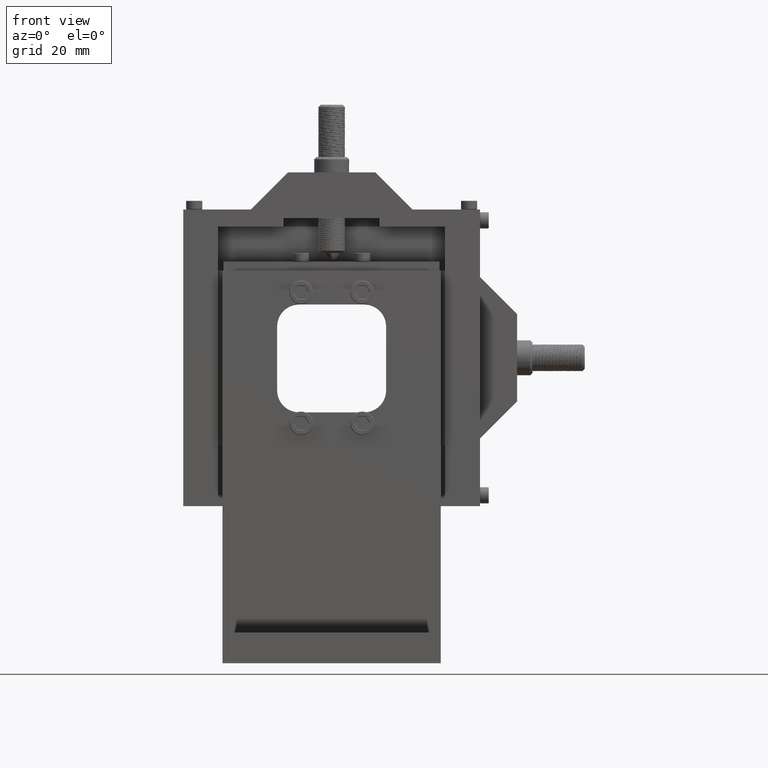
[diagram: clean part render]
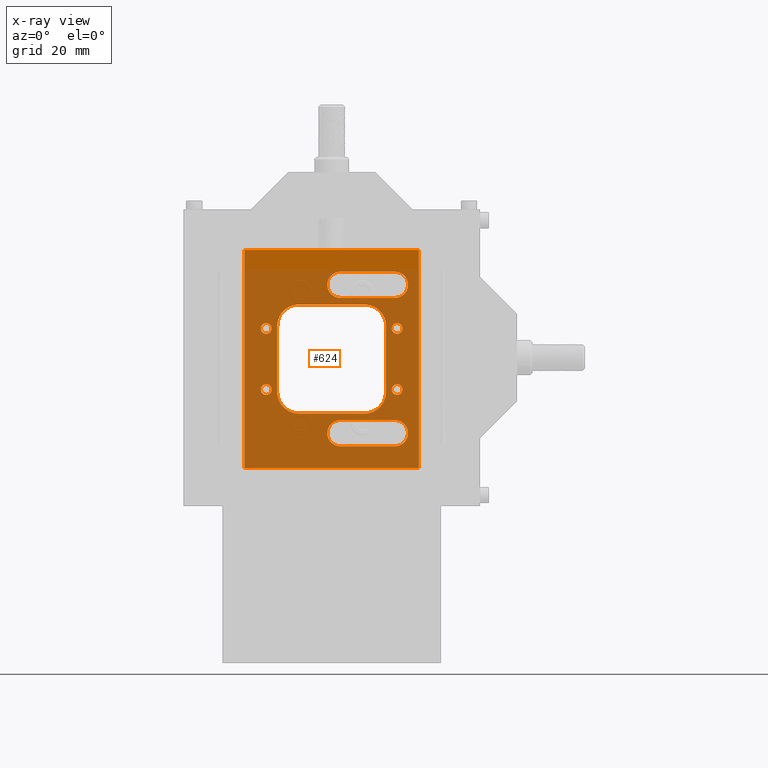
[diagram: x-ray — body ghosted, one internal face saturated and labeled with its STEP entity id]
A machine part, front view, then the same camera in x-ray: the body is ghosted and one INTERNAL B-rep face — a face not visible from any outside direction — is saturated and labeled: STEP entity #624.
In plain terms, the highlighted planar face has unit normal (0, -1, 0).
Its self-contained STEP definition (entity closure, byte-faithful):
#105=FACE_BOUND('',#3712,.T.);
#106=FACE_BOUND('',#3713,.T.);
#107=FACE_BOUND('',#3714,.T.);
#108=FACE_BOUND('',#3715,.T.);
#109=FACE_BOUND('',#3716,.T.);
#110=FACE_BOUND('',#3717,.T.);
#111=FACE_BOUND('',#3718,.T.);
#624=ADVANCED_FACE('',(#2149,#105,#106,#107,#108,#109,#110,#111),#23246,
 .T.);
#2149=FACE_OUTER_BOUND('',#3711,.T.);
#3711=EDGE_LOOP('',(#6861,#6862,#6863,#6864));
#3712=EDGE_LOOP('',(#6865,#6866));
#3713=EDGE_LOOP('',(#6867,#6868));
#3714=EDGE_LOOP('',(#6869,#6870));
#3715=EDGE_LOOP('',(#6871,#6872));
#3716=EDGE_LOOP('',(#6873,#6874,#6875,#6876,#6877,#6878,#6879,#6880));
#3717=EDGE_LOOP('',(#6881,#6882,#6883,#6884));
#3718=EDGE_LOOP('',(#6885,#6886,#6887,#6888));
#6861=ORIENTED_EDGE('',*,*,#13509,.T.);
#6862=ORIENTED_EDGE('',*,*,#13508,.F.);
#6863=ORIENTED_EDGE('',*,*,#13510,.T.);
#6864=ORIENTED_EDGE('',*,*,#13511,.T.);
#6865=ORIENTED_EDGE('',*,*,#13868,.T.);
#6866=ORIENTED_EDGE('',*,*,#13924,.T.);
#6867=ORIENTED_EDGE('',*,*,#13867,.T.);
#6868=ORIENTED_EDGE('',*,*,#13921,.T.);
#6869=ORIENTED_EDGE('',*,*,#13872,.T.);
#6870=ORIENTED_EDGE('',*,*,#13934,.T.);
#6871=ORIENTED_EDGE('',*,*,#13865,.T.);
#6872=ORIENTED_EDGE('',*,*,#13918,.T.);
#6873=ORIENTED_EDGE('',*,*,#13515,.T.);
#6874=ORIENTED_EDGE('',*,*,#13621,.T.);
#6875=ORIENTED_EDGE('',*,*,#13512,.T.);
#6876=ORIENTED_EDGE('',*,*,#13625,.T.);
#6877=ORIENTED_EDGE('',*,*,#13513,.T.);
#6878=ORIENTED_EDGE('',*,*,#13628,.T.);
#6879=ORIENTED_EDGE('',*,*,#13514,.T.);
#6880=ORIENTED_EDGE('',*,*,#13617,.T.);
#6881=ORIENTED_EDGE('',*,*,#13609,.T.);
#6882=ORIENTED_EDGE('',*,*,#13516,.T.);
#6883=ORIENTED_EDGE('',*,*,#13612,.T.);
#6884=ORIENTED_EDGE('',*,*,#13517,.T.);
#6885=ORIENTED_EDGE('',*,*,#13589,.T.);
#6886=ORIENTED_EDGE('',*,*,#13518,.T.);
#6887=ORIENTED_EDGE('',*,*,#13592,.T.);
#6888=ORIENTED_EDGE('',*,*,#13519,.T.);
#13508=EDGE_CURVE('',#20739,#20736,#17947,.T.);
#13509=EDGE_CURVE('',#20740,#20736,#17948,.T.);
#13510=EDGE_CURVE('',#20739,#20741,#17949,.T.);
#13511=EDGE_CURVE('',#20741,#20740,#17950,.T.);
#13512=EDGE_CURVE('',#20747,#20748,#17951,.T.);
#13513=EDGE_CURVE('',#20749,#20750,#17952,.T.);
#13514=EDGE_CURVE('',#20751,#20752,#17953,.T.);
#13515=EDGE_CURVE('',#20753,#20746,#17954,.T.);
#13516=EDGE_CURVE('',#20754,#20755,#17955,.T.);
#13517=EDGE_CURVE('',#20756,#20757,#17956,.T.);
#13518=EDGE_CURVE('',#20758,#20759,#17957,.T.);
#13519=EDGE_CURVE('',#20760,#20761,#17958,.T.);
#13589=EDGE_CURVE('',#20761,#20758,#16628,.T.);
#13592=EDGE_CURVE('',#20759,#20760,#16630,.T.);
#13609=EDGE_CURVE('',#20757,#20754,#16639,.T.);
#13612=EDGE_CURVE('',#20755,#20756,#16641,.T.);
#13617=EDGE_CURVE('',#20752,#20753,#16643,.T.);
#13621=EDGE_CURVE('',#20746,#20747,#16645,.T.);
#13625=EDGE_CURVE('',#20748,#20749,#16647,.T.);
#13628=EDGE_CURVE('',#20750,#20751,#16649,.T.);
#13865=EDGE_CURVE('',#20745,#20953,#16713,.T.);
#13867=EDGE_CURVE('',#20743,#20955,#16714,.T.);
#13868=EDGE_CURVE('',#20742,#20957,#16715,.T.);
#13872=EDGE_CURVE('',#20744,#20963,#16719,.T.);
#13918=EDGE_CURVE('',#20953,#20745,#16745,.T.);
#13921=EDGE_CURVE('',#20955,#20743,#16747,.T.);
#13924=EDGE_CURVE('',#20957,#20742,#16749,.T.);
#13934=EDGE_CURVE('',#20963,#20744,#16755,.T.);
#16628=(
BOUNDED_CURVE()
B_SPLINE_CURVE(2,(#31638,#31639,#31640,#31641,#31642),.UNSPECIFIED.,.F.,
 .F.)
B_SPLINE_CURVE_WITH_KNOTS((3,2,3),(-9.42477796076936,-4.71238898038468,
0.),.UNSPECIFIED.)
CURVE()
GEOMETRIC_REPRESENTATION_ITEM()
RATIONAL_B_SPLINE_CURVE((1.,0.707106781186548,1.,0.707106781186548,1.))
REPRESENTATION_ITEM('')
);
#16630=(
BOUNDED_CURVE()
B_SPLINE_CURVE(2,(#31650,#31651,#31652,#31653,#31654),.UNSPECIFIED.,.F.,
 .F.)
B_SPLINE_CURVE_WITH_KNOTS((3,2,3),(-9.42477796076938,-4.71238898038469,
0.),.UNSPECIFIED.)
CURVE()
GEOMETRIC_REPRESENTATION_ITEM()
RATIONAL_B_SPLINE_CURVE((1.,0.707106781186548,1.,0.707106781186548,1.))
REPRESENTATION_ITEM('')
);
#16639=(
BOUNDED_CURVE()
B_SPLINE_CURVE(2,(#31701,#31702,#31703,#31704,#31705),.UNSPECIFIED.,.F.,
 .F.)
B_SPLINE_CURVE_WITH_KNOTS((3,2,3),(-9.42477796076938,-4.71238898038469,
0.),.UNSPECIFIED.)
CURVE()
GEOMETRIC_REPRESENTATION_ITEM()
RATIONAL_B_SPLINE_CURVE((1.,0.707106781186548,1.,0.707106781186548,1.))
REPRESENTATION_ITEM('')
);
#16641=(
BOUNDED_CURVE()
B_SPLINE_CURVE(2,(#31713,#31714,#31715,#31716,#31717),.UNSPECIFIED.,.F.,
 .F.)
B_SPLINE_CURVE_WITH_KNOTS((3,2,3),(-9.42477796076938,-4.71238898038469,
0.),.UNSPECIFIED.)
CURVE()
GEOMETRIC_REPRESENTATION_ITEM()
RATIONAL_B_SPLINE_CURVE((1.,0.707106781186548,1.,0.707106781186548,1.))
REPRESENTATION_ITEM('')
);
#16643=(
BOUNDED_CURVE()
B_SPLINE_CURVE(2,(#31727,#31728,#31729),.UNSPECIFIED.,.F.,.F.)
B_SPLINE_CURVE_WITH_KNOTS((3,3),(-7.85398163397448,0.),.UNSPECIFIED.)
CURVE()
GEOMETRIC_REPRESENTATION_ITEM()
RATIONAL_B_SPLINE_CURVE((1.,0.707106781186548,1.))
REPRESENTATION_ITEM('')
);
#16645=(
BOUNDED_CURVE()
B_SPLINE_CURVE(2,(#31737,#31738,#31739),.UNSPECIFIED.,.F.,.F.)
B_SPLINE_CURVE_WITH_KNOTS((3,3),(-7.85398163397448,0.),.UNSPECIFIED.)
CURVE()
GEOMETRIC_REPRESENTATION_ITEM()
RATIONAL_B_SPLINE_CURVE((1.,0.707106781186548,1.))
REPRESENTATION_ITEM('')
);
#16647=(
BOUNDED_CURVE()
B_SPLINE_CURVE(2,(#31747,#31748,#31749),.UNSPECIFIED.,.F.,.F.)
B_SPLINE_CURVE_WITH_KNOTS((3,3),(-7.85398163397448,0.),.UNSPECIFIED.)
CURVE()
GEOMETRIC_REPRESENTATION_ITEM()
RATIONAL_B_SPLINE_CURVE((1.,0.707106781186548,1.))
REPRESENTATION_ITEM('')
);
#16649=(
BOUNDED_CURVE()
B_SPLINE_CURVE(2,(#31755,#31756,#31757),.UNSPECIFIED.,.F.,.F.)
B_SPLINE_CURVE_WITH_KNOTS((3,3),(-7.85398163397448,0.),.UNSPECIFIED.)
CURVE()
GEOMETRIC_REPRESENTATION_ITEM()
RATIONAL_B_SPLINE_CURVE((1.,0.707106781186548,1.))
REPRESENTATION_ITEM('')
);
#16713=(
BOUNDED_CURVE()
B_SPLINE_CURVE(2,(#32443,#32444,#32445,#32446,#32447),.UNSPECIFIED.,.F.,
 .F.)
B_SPLINE_CURVE_WITH_KNOTS((3,2,3),(-3.86258816758866,-1.93129408379433,
1.67421632113474E-13),.UNSPECIFIED.)
CURVE()
GEOMETRIC_REPRESENTATION_ITEM()
RATIONAL_B_SPLINE_CURVE((1.,0.707106781186548,1.,0.707106781186504,1.))
REPRESENTATION_ITEM('')
);
#16714=(
BOUNDED_CURVE()
B_SPLINE_CURVE(2,(#32467,#32468,#32469,#32470,#32471),.UNSPECIFIED.,.F.,
 .F.)
B_SPLINE_CURVE_WITH_KNOTS((3,2,3),(-3.86258816758863,-1.93129408379432,
1.62980740014973E-13),.UNSPECIFIED.)
CURVE()
GEOMETRIC_REPRESENTATION_ITEM()
RATIONAL_B_SPLINE_CURVE((1.,0.707106781186548,1.,0.707106781186505,1.))
REPRESENTATION_ITEM('')
);
#16715=(
BOUNDED_CURVE()
B_SPLINE_CURVE(2,(#32472,#32473,#32474,#32475,#32476),.UNSPECIFIED.,.F.,
 .F.)
B_SPLINE_CURVE_WITH_KNOTS((3,2,3),(-3.86258816758864,-1.93129408379432,
1.62980740014973E-13),.UNSPECIFIED.)
CURVE()
GEOMETRIC_REPRESENTATION_ITEM()
RATIONAL_B_SPLINE_CURVE((1.,0.707106781186548,1.,0.707106781186505,1.))
REPRESENTATION_ITEM('')
);
#16719=(
BOUNDED_CURVE()
B_SPLINE_CURVE(2,(#32492,#32493,#32494,#32495,#32496),.UNSPECIFIED.,.F.,
 .F.)
B_SPLINE_CURVE_WITH_KNOTS((3,2,3),(-3.86258816758864,-1.93129408379432,
1.63424829224823E-13),.UNSPECIFIED.)
CURVE()
GEOMETRIC_REPRESENTATION_ITEM()
RATIONAL_B_SPLINE_CURVE((1.,0.707106781186548,1.,0.707106781186505,1.))
REPRESENTATION_ITEM('')
);
#16745=(
BOUNDED_CURVE()
B_SPLINE_CURVE(2,(#32796,#32797,#32798,#32799,#32800),.UNSPECIFIED.,.F.,
 .F.)
B_SPLINE_CURVE_WITH_KNOTS((3,2,3),(1.67421632113474E-13,1.93129408379433,
3.86258816758866),.UNSPECIFIED.)
CURVE()
GEOMETRIC_REPRESENTATION_ITEM()
RATIONAL_B_SPLINE_CURVE((1.,0.707106781186591,1.,0.707106781186548,1.))
REPRESENTATION_ITEM('')
);
#16747=(
BOUNDED_CURVE()
B_SPLINE_CURVE(2,(#32808,#32809,#32810,#32811,#32812),.UNSPECIFIED.,.F.,
 .F.)
B_SPLINE_CURVE_WITH_KNOTS((3,2,3),(1.62980740014973E-13,1.93129408379432,
3.86258816758863),.UNSPECIFIED.)
CURVE()
GEOMETRIC_REPRESENTATION_ITEM()
RATIONAL_B_SPLINE_CURVE((1.,0.70710678118659,1.,0.707106781186548,1.))
REPRESENTATION_ITEM('')
);
#16749=(
BOUNDED_CURVE()
B_SPLINE_CURVE(2,(#32820,#32821,#32822,#32823,#32824),.UNSPECIFIED.,.F.,
 .F.)
B_SPLINE_CURVE_WITH_KNOTS((3,2,3),(1.62980740014973E-13,1.93129408379432,
3.86258816758864),.UNSPECIFIED.)
CURVE()
GEOMETRIC_REPRESENTATION_ITEM()
RATIONAL_B_SPLINE_CURVE((1.,0.70710678118659,1.,0.707106781186548,1.))
REPRESENTATION_ITEM('')
);
#16755=(
BOUNDED_CURVE()
B_SPLINE_CURVE(2,(#32856,#32857,#32858,#32859,#32860),.UNSPECIFIED.,.F.,
 .F.)
B_SPLINE_CURVE_WITH_KNOTS((3,2,3),(1.63424829224823E-13,1.93129408379432,
3.86258816758864),.UNSPECIFIED.)
CURVE()
GEOMETRIC_REPRESENTATION_ITEM()
RATIONAL_B_SPLINE_CURVE((1.,0.70710678118659,1.,0.707106781186548,1.))
REPRESENTATION_ITEM('')
);
#17947=B_SPLINE_CURVE_WITH_KNOTS('',1,(#31433,#31434),.UNSPECIFIED.,.F.,
 .F.,(2,2),(0.,40.),.UNSPECIFIED.);
#17948=B_SPLINE_CURVE_WITH_KNOTS('',1,(#31435,#31436),.UNSPECIFIED.,.F.,
 .F.,(2,2),(0.,50.),.UNSPECIFIED.);
#17949=B_SPLINE_CURVE_WITH_KNOTS('',1,(#31437,#31438),.UNSPECIFIED.,.F.,
 .F.,(2,2),(0.,50.),.UNSPECIFIED.);
#17950=B_SPLINE_CURVE_WITH_KNOTS('',1,(#31439,#31440),.UNSPECIFIED.,.F.,
 .F.,(2,2),(0.,40.),.UNSPECIFIED.);
#17951=B_SPLINE_CURVE_WITH_KNOTS('',1,(#31441,#31442),.UNSPECIFIED.,.F.,
 .F.,(2,2),(0.,15.),.UNSPECIFIED.);
#17952=B_SPLINE_CURVE_WITH_KNOTS('',1,(#31443,#31444),.UNSPECIFIED.,.F.,
 .F.,(2,2),(0.,14.9999999999999),.UNSPECIFIED.);
#17953=B_SPLINE_CURVE_WITH_KNOTS('',1,(#31445,#31446),.UNSPECIFIED.,.F.,
 .F.,(2,2),(0.,15.),.UNSPECIFIED.);
#17954=B_SPLINE_CURVE_WITH_KNOTS('',1,(#31447,#31448),.UNSPECIFIED.,.F.,
 .F.,(2,2),(0.,14.9999999999998),.UNSPECIFIED.);
#17955=B_SPLINE_CURVE_WITH_KNOTS('',1,(#31449,#31450),.UNSPECIFIED.,.F.,
 .F.,(2,2),(0.,12.5),.UNSPECIFIED.);
#17956=B_SPLINE_CURVE_WITH_KNOTS('',1,(#31451,#31452),.UNSPECIFIED.,.F.,
 .F.,(2,2),(0.,12.5),.UNSPECIFIED.);
#17957=B_SPLINE_CURVE_WITH_KNOTS('',1,(#31453,#31454),.UNSPECIFIED.,.F.,
 .F.,(2,2),(0.,12.5),.UNSPECIFIED.);
#17958=B_SPLINE_CURVE_WITH_KNOTS('',1,(#31455,#31456),.UNSPECIFIED.,.F.,
 .F.,(2,2),(0.,12.5),.UNSPECIFIED.);
#20736=VERTEX_POINT('',#30893);
#20739=VERTEX_POINT('',#30896);
#20740=VERTEX_POINT('',#30897);
#20741=VERTEX_POINT('',#30898);
#20742=VERTEX_POINT('',#30899);
#20743=VERTEX_POINT('',#30900);
#20744=VERTEX_POINT('',#30901);
#20745=VERTEX_POINT('',#30902);
#20746=VERTEX_POINT('',#30903);
#20747=VERTEX_POINT('',#30904);
#20748=VERTEX_POINT('',#30905);
#20749=VERTEX_POINT('',#30906);
#20750=VERTEX_POINT('',#30907);
#20751=VERTEX_POINT('',#30908);
#20752=VERTEX_POINT('',#30909);
#20753=VERTEX_POINT('',#30910);
#20754=VERTEX_POINT('',#30911);
#20755=VERTEX_POINT('',#30912);
#20756=VERTEX_POINT('',#30913);
#20757=VERTEX_POINT('',#30914);
#20758=VERTEX_POINT('',#30915);
#20759=VERTEX_POINT('',#30916);
#20760=VERTEX_POINT('',#30917);
#20761=VERTEX_POINT('',#30918);
#20953=VERTEX_POINT('',#31110);
#20955=VERTEX_POINT('',#31112);
#20957=VERTEX_POINT('',#31114);
#20963=VERTEX_POINT('',#31120);
#23246=PLANE('',#24146);
#24146=AXIS2_PLACEMENT_3D('',#30461,#25491,$);
#25491=DIRECTION('',(0.,-1.,0.));
#30461=CARTESIAN_POINT('',(-36.1199975952793,18.999993835614,39.5867628392237));
#30893=CARTESIAN_POINT('',(8.00000240472073,18.999993835614,94.7067628392236));
#30896=CARTESIAN_POINT('',(-31.9999975952793,18.999993835614,94.7067628392236));
#30897=CARTESIAN_POINT('',(8.00000240472073,18.999993835614,44.7067628392237));
#30898=CARTESIAN_POINT('',(-31.9999975952793,18.999993835614,44.7067628392237));
#30899=CARTESIAN_POINT('',(3.00000240472073,18.999993835614,75.4772628392241));
#30900=CARTESIAN_POINT('',(3.00000240472073,18.999993835614,61.4772628392238));
#30901=CARTESIAN_POINT('',(-26.9999975952793,18.999993835614,75.4772628392242));
#30902=CARTESIAN_POINT('',(-26.9999975952793,18.999993835614,61.4772628392239));
#30903=CARTESIAN_POINT('',(0.500002404720732,18.999993835614,62.206762839224));
#30904=CARTESIAN_POINT('',(-4.49999759527927,18.999993835614,57.206762839224));
#30905=CARTESIAN_POINT('',(-19.4999975952793,18.999993835614,57.2067628392239));
#30906=CARTESIAN_POINT('',(-24.4999975952793,18.999993835614,62.2067628392239));
#30907=CARTESIAN_POINT('',(-24.4999975952793,18.999993835614,77.2067628392238));
#30908=CARTESIAN_POINT('',(-19.4999975952793,18.999993835614,82.2067628392238));
#30909=CARTESIAN_POINT('',(-4.49999759527927,18.999993835614,82.2067628392238));
#30910=CARTESIAN_POINT('',(0.500002404720732,18.999993835614,77.2067628392238));
#30911=CARTESIAN_POINT('',(2.50000240472073,18.999993835614,83.7067628392239));
#30912=CARTESIAN_POINT('',(-9.99999759527927,18.999993835614,83.7067628392238));
#30913=CARTESIAN_POINT('',(-9.99999759527927,18.999993835614,89.7067628392238));
#30914=CARTESIAN_POINT('',(2.50000240472073,18.999993835614,89.7067628392239));
#30915=CARTESIAN_POINT('',(2.50000240472073,18.999993835614,49.7067628392239));
#30916=CARTESIAN_POINT('',(-9.99999759527927,18.999993835614,49.7067628392238));
#30917=CARTESIAN_POINT('',(-9.99999759527927,18.999993835614,55.7067628392238));
#30918=CARTESIAN_POINT('',(2.50000240472073,18.999993835614,55.7067628392239));
#31110=CARTESIAN_POINT('',(-26.9999975952791,18.999993835614,63.9362628392239));
#31112=CARTESIAN_POINT('',(3.00000240472089,18.999993835614,63.9362628392238));
#31114=CARTESIAN_POINT('',(3.00000240472089,18.999993835614,77.9362628392241));
#31120=CARTESIAN_POINT('',(-26.9999975952791,18.999993835614,77.9362628392242));
#31433=CARTESIAN_POINT('',(-31.9999975952793,18.999993835614,94.7067628392236));
#31434=CARTESIAN_POINT('',(8.00000240472073,18.999993835614,94.7067628392236));
#31435=CARTESIAN_POINT('',(8.00000240472073,18.999993835614,44.7067628392237));
#31436=CARTESIAN_POINT('',(8.00000240472073,18.999993835614,94.7067628392236));
#31437=CARTESIAN_POINT('',(-31.9999975952793,18.999993835614,94.7067628392236));
#31438=CARTESIAN_POINT('',(-31.9999975952793,18.999993835614,44.7067628392237));
#31439=CARTESIAN_POINT('',(-31.9999975952793,18.999993835614,44.7067628392237));
#31440=CARTESIAN_POINT('',(8.00000240472073,18.999993835614,44.7067628392237));
#31441=CARTESIAN_POINT('',(-4.49999759527927,18.999993835614,57.206762839224));
#31442=CARTESIAN_POINT('',(-19.4999975952793,18.999993835614,57.2067628392239));
#31443=CARTESIAN_POINT('',(-24.4999975952793,18.999993835614,62.2067628392239));
#31444=CARTESIAN_POINT('',(-24.4999975952793,18.999993835614,77.2067628392238));
#31445=CARTESIAN_POINT('',(-19.4999975952793,18.999993835614,82.2067628392238));
#31446=CARTESIAN_POINT('',(-4.49999759527927,18.999993835614,82.2067628392238));
#31447=CARTESIAN_POINT('',(0.500002404720732,18.999993835614,77.2067628392238));
#31448=CARTESIAN_POINT('',(0.500002404720732,18.999993835614,62.206762839224));
#31449=CARTESIAN_POINT('',(2.50000240472073,18.999993835614,83.7067628392239));
#31450=CARTESIAN_POINT('',(-9.99999759527927,18.999993835614,83.7067628392238));
#31451=CARTESIAN_POINT('',(-9.99999759527927,18.999993835614,89.7067628392238));
#31452=CARTESIAN_POINT('',(2.50000240472073,18.999993835614,89.7067628392239));
#31453=CARTESIAN_POINT('',(2.50000240472073,18.999993835614,49.7067628392239));
#31454=CARTESIAN_POINT('',(-9.99999759527927,18.999993835614,49.7067628392238));
#31455=CARTESIAN_POINT('',(-9.99999759527927,18.999993835614,55.7067628392238));
#31456=CARTESIAN_POINT('',(2.50000240472073,18.999993835614,55.7067628392239));
#31638=CARTESIAN_POINT('',(2.50000240472073,18.999993835614,55.7067628392238));
#31639=CARTESIAN_POINT('',(5.50000240472072,18.999993835614,55.7067628392238));
#31640=CARTESIAN_POINT('',(5.50000240472072,18.999993835614,52.7067628392239));
#31641=CARTESIAN_POINT('',(5.50000240472072,18.999993835614,49.7067628392239));
#31642=CARTESIAN_POINT('',(2.50000240472073,18.999993835614,49.7067628392239));
#31650=CARTESIAN_POINT('',(-9.99999759527927,18.999993835614,49.7067628392238));
#31651=CARTESIAN_POINT('',(-12.9999975952793,18.999993835614,49.7067628392238));
#31652=CARTESIAN_POINT('',(-12.9999975952793,18.999993835614,52.7067628392238));
#31653=CARTESIAN_POINT('',(-12.9999975952793,18.999993835614,55.7067628392237));
#31654=CARTESIAN_POINT('',(-9.99999759527927,18.999993835614,55.7067628392237));
#31701=CARTESIAN_POINT('',(2.50000240472073,18.999993835614,89.7067628392239));
#31702=CARTESIAN_POINT('',(5.50000240472073,18.999993835614,89.7067628392239));
#31703=CARTESIAN_POINT('',(5.50000240472073,18.999993835614,86.7067628392239));
#31704=CARTESIAN_POINT('',(5.50000240472073,18.999993835614,83.7067628392239));
#31705=CARTESIAN_POINT('',(2.50000240472073,18.999993835614,83.7067628392239));
#31713=CARTESIAN_POINT('',(-9.99999759527927,18.999993835614,83.7067628392238));
#31714=CARTESIAN_POINT('',(-12.9999975952793,18.999993835614,83.7067628392238));
#31715=CARTESIAN_POINT('',(-12.9999975952793,18.999993835614,86.7067628392238));
#31716=CARTESIAN_POINT('',(-12.9999975952793,18.999993835614,89.7067628392238));
#31717=CARTESIAN_POINT('',(-9.99999759527927,18.999993835614,89.7067628392238));
#31727=CARTESIAN_POINT('',(-4.49999759527927,18.999993835614,82.2067628392238));
#31728=CARTESIAN_POINT('',(0.500002404720732,18.999993835614,82.2067628392238));
#31729=CARTESIAN_POINT('',(0.500002404720732,18.999993835614,77.2067628392238));
#31737=CARTESIAN_POINT('',(0.500002404720732,18.999993835614,62.206762839224));
#31738=CARTESIAN_POINT('',(0.500002404720732,18.999993835614,57.206762839224));
#31739=CARTESIAN_POINT('',(-4.49999759527927,18.999993835614,57.206762839224));
#31747=CARTESIAN_POINT('',(-19.4999975952793,18.999993835614,57.2067628392239));
#31748=CARTESIAN_POINT('',(-24.4999975952793,18.999993835614,57.2067628392239));
#31749=CARTESIAN_POINT('',(-24.4999975952793,18.999993835614,62.2067628392239));
#31755=CARTESIAN_POINT('',(-24.4999975952793,18.999993835614,77.2067628392238));
#31756=CARTESIAN_POINT('',(-24.4999975952793,18.999993835614,82.2067628392238));
#31757=CARTESIAN_POINT('',(-19.4999975952793,18.999993835614,82.2067628392238));
#32443=CARTESIAN_POINT('',(-26.9999975952793,18.999993835614,61.4772628392239));
#32444=CARTESIAN_POINT('',(-28.2294975952793,18.999993835614,61.4772628392239));
#32445=CARTESIAN_POINT('',(-28.2294975952793,18.999993835614,62.7067628392239));
#32446=CARTESIAN_POINT('',(-28.2294975952793,18.999993835614,63.936262839224));
#32447=CARTESIAN_POINT('',(-26.9999975952791,18.999993835614,63.9362628392239));
#32467=CARTESIAN_POINT('',(3.00000240472073,18.999993835614,61.4772628392238));
#32468=CARTESIAN_POINT('',(1.77050240472074,18.999993835614,61.4772628392238));
#32469=CARTESIAN_POINT('',(1.77050240472074,18.999993835614,62.7067628392238));
#32470=CARTESIAN_POINT('',(1.77050240472074,18.999993835614,63.9362628392239));
#32471=CARTESIAN_POINT('',(3.00000240472089,18.999993835614,63.9362628392238));
#32472=CARTESIAN_POINT('',(3.00000240472073,18.999993835614,75.4772628392241));
#32473=CARTESIAN_POINT('',(1.77050240472073,18.999993835614,75.4772628392241));
#32474=CARTESIAN_POINT('',(1.77050240472073,18.999993835614,76.7067628392241));
#32475=CARTESIAN_POINT('',(1.77050240472073,18.999993835614,77.9362628392242));
#32476=CARTESIAN_POINT('',(3.00000240472089,18.999993835614,77.9362628392241));
#32492=CARTESIAN_POINT('',(-26.9999975952793,18.999993835614,75.4772628392242));
#32493=CARTESIAN_POINT('',(-28.2294975952793,18.999993835614,75.4772628392242));
#32494=CARTESIAN_POINT('',(-28.2294975952793,18.999993835614,76.7067628392242));
#32495=CARTESIAN_POINT('',(-28.2294975952793,18.999993835614,77.9362628392243));
#32496=CARTESIAN_POINT('',(-26.9999975952791,18.999993835614,77.9362628392242));
#32796=CARTESIAN_POINT('',(-26.9999975952791,18.999993835614,63.9362628392239));
#32797=CARTESIAN_POINT('',(-25.7704975952793,18.999993835614,63.9362628392237));
#32798=CARTESIAN_POINT('',(-25.7704975952793,18.999993835614,62.7067628392239));
#32799=CARTESIAN_POINT('',(-25.7704975952793,18.999993835614,61.4772628392239));
#32800=CARTESIAN_POINT('',(-26.9999975952793,18.999993835614,61.4772628392239));
#32808=CARTESIAN_POINT('',(3.00000240472089,18.999993835614,63.9362628392238));
#32809=CARTESIAN_POINT('',(4.22950240472073,18.999993835614,63.9362628392236));
#32810=CARTESIAN_POINT('',(4.22950240472073,18.999993835614,62.7067628392238));
#32811=CARTESIAN_POINT('',(4.22950240472073,18.999993835614,61.4772628392238));
#32812=CARTESIAN_POINT('',(3.00000240472073,18.999993835614,61.4772628392238));
#32820=CARTESIAN_POINT('',(3.00000240472089,18.999993835614,77.9362628392241));
#32821=CARTESIAN_POINT('',(4.22950240472073,18.999993835614,77.9362628392239));
#32822=CARTESIAN_POINT('',(4.22950240472073,18.999993835614,76.7067628392241));
#32823=CARTESIAN_POINT('',(4.22950240472073,18.999993835614,75.4772628392241));
#32824=CARTESIAN_POINT('',(3.00000240472073,18.999993835614,75.4772628392241));
#32856=CARTESIAN_POINT('',(-26.9999975952791,18.999993835614,77.9362628392242));
#32857=CARTESIAN_POINT('',(-25.7704975952793,18.999993835614,77.936262839224));
#32858=CARTESIAN_POINT('',(-25.7704975952793,18.999993835614,76.7067628392242));
#32859=CARTESIAN_POINT('',(-25.7704975952793,18.999993835614,75.4772628392242));
#32860=CARTESIAN_POINT('',(-26.9999975952793,18.999993835614,75.4772628392242));